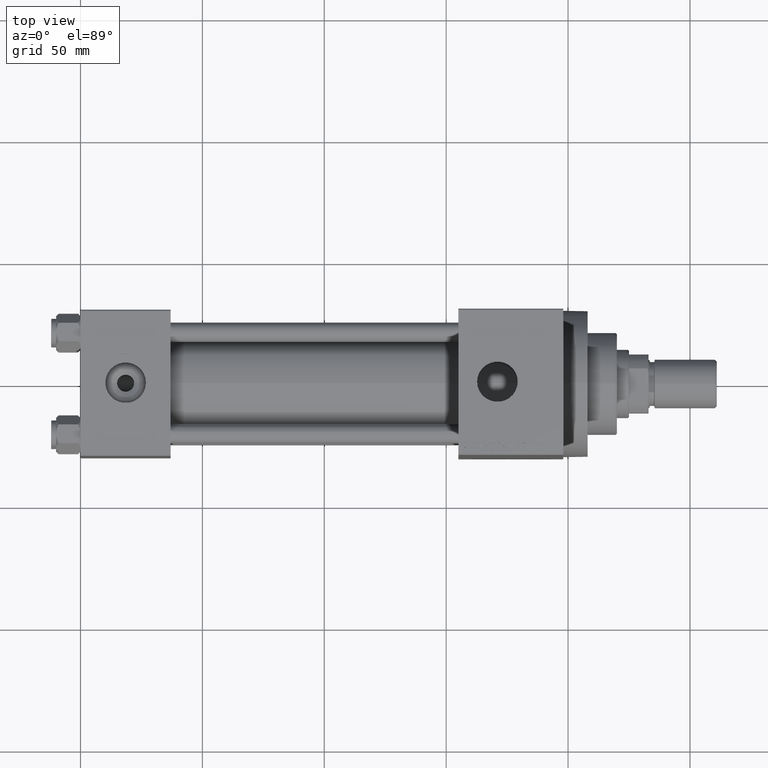
[diagram: clean part render]
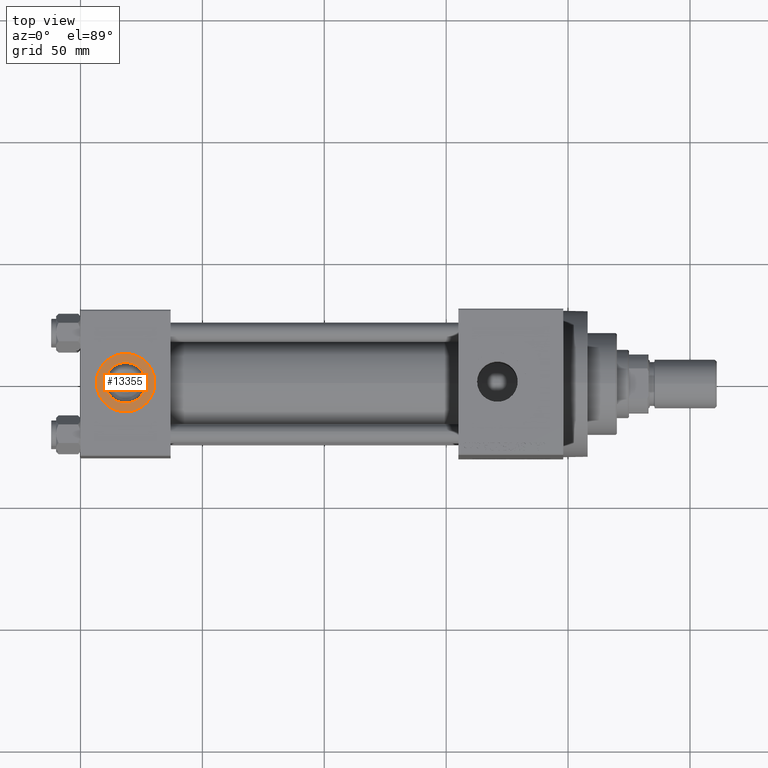
[diagram: same view with one face highlighted and labeled with its STEP entity id]
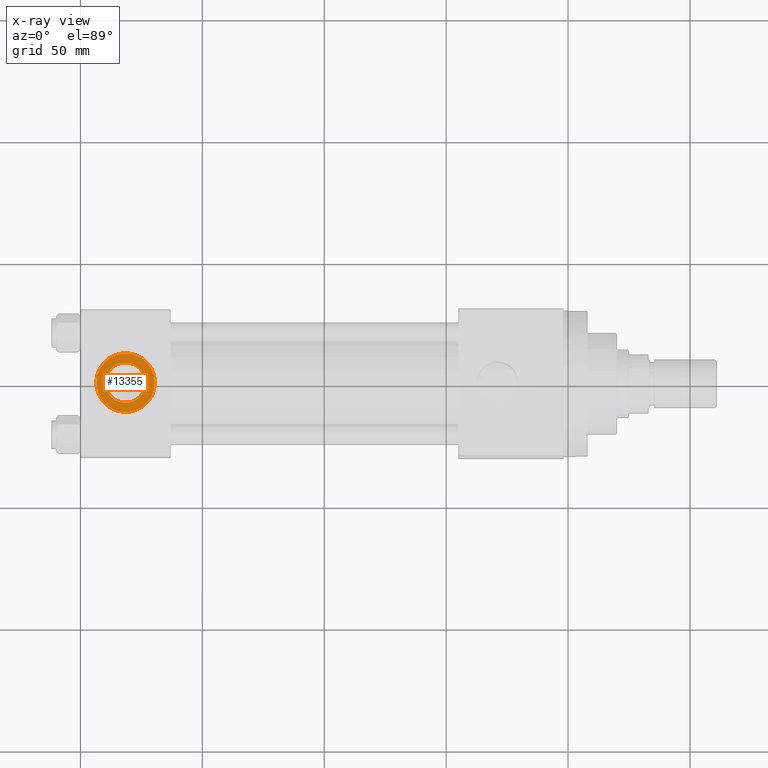
[diagram: x-ray of the same camera — body ghosted, the highlighted face saturated]
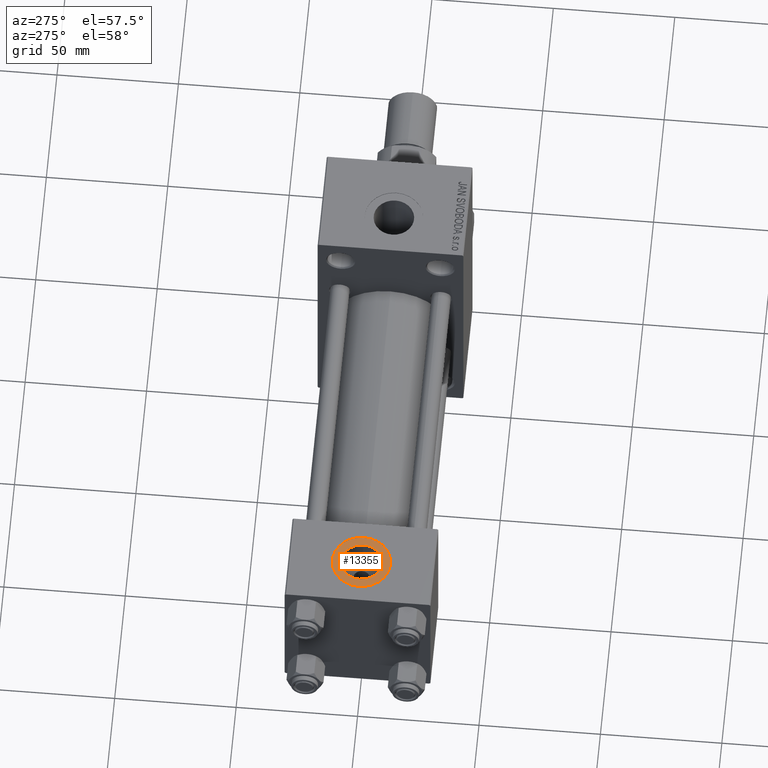
[diagram: same view with one face highlighted and labeled with its STEP entity id]
A machine part, top view. The second image highlights one B-rep face of the part: STEP entity #13355.
The next image is the same camera in x-ray: the body ghosted, the highlighted face saturated — about 0% of this face is hidden behind the body in this view.
A second angle (auxiliary view) of the same face is appended — the face is thin or edge-on in the first view.
In plain terms, the highlighted planar face has unit normal (0, 0, 1).
Its self-contained STEP definition (entity closure, byte-faithful):
#2520 = CARTESIAN_POINT ( 'NONE',  ( 18.50000000000000000, -3.469446951953614978E-15, 29.79999999999999716 ) ) ;
#3723 = CIRCLE ( 'NONE', #40700, 8.330000000000000071 ) ;
#4729 = EDGE_CURVE ( 'NONE', #14566, #7981, #9555, .T. ) ;
#4951 = CIRCLE ( 'NONE', #28813, 12.00000000000000000 ) ;
#5213 = EDGE_CURVE ( 'NONE', #24993, #25182, #4951, .T. ) ;
#5558 = DIRECTION ( 'NONE',  ( 1.000000000000000000, 0.000000000000000000, 0.000000000000000000 ) ) ;
#7981 = VERTEX_POINT ( 'NONE', #45950 ) ;
#8285 = EDGE_LOOP ( 'NONE', ( #38222, #32179 ) ) ;
#8535 = DIRECTION ( 'NONE',  ( 0.000000000000000000, 0.000000000000000000, 1.000000000000000000 ) ) ;
#9500 = CARTESIAN_POINT ( 'NONE',  ( 18.50000000000000000, -3.469446951953614978E-15, 29.79999999999999716 ) ) ;
#9555 = CIRCLE ( 'NONE', #18755, 8.330000000000000071 ) ;
#9744 = DIRECTION ( 'NONE',  ( 1.000000000000000000, 0.000000000000000000, 0.000000000000000000 ) ) ;
#9927 = CIRCLE ( 'NONE', #36875, 12.00000000000000000 ) ;
#12073 = DIRECTION ( 'NONE',  ( 1.000000000000000000, 0.000000000000000000, 0.000000000000000000 ) ) ;
#13103 = DIRECTION ( 'NONE',  ( 1.000000000000000000, 0.000000000000000000, 0.000000000000000000 ) ) ;
#13355 = ADVANCED_FACE ( 'NONE', ( #46548, #31578 ), #42701, .T. ) ;
#14566 = VERTEX_POINT ( 'NONE', #38601 ) ;
#15161 = CARTESIAN_POINT ( 'NONE',  ( 6.499999999999997335, -1.999870792976790833E-15, 29.79999999999999716 ) ) ;
#15835 = AXIS2_PLACEMENT_3D ( 'NONE', #41582, #8535, #15979 ) ;
#15979 = DIRECTION ( 'NONE',  ( 1.000000000000000000, 0.000000000000000000, -0.000000000000000000 ) ) ;
#16485 = DIRECTION ( 'NONE',  ( 0.000000000000000000, 0.000000000000000000, 1.000000000000000000 ) ) ;
#16608 = CARTESIAN_POINT ( 'NONE',  ( 18.50000000000000000, -3.469446951953614978E-15, 29.79999999999999716 ) ) ;
#16840 = DIRECTION ( 'NONE',  ( 0.000000000000000000, 0.000000000000000000, 1.000000000000000000 ) ) ;
#18755 = AXIS2_PLACEMENT_3D ( 'NONE', #9500, #43024, #13103 ) ;
#19142 = CARTESIAN_POINT ( 'NONE',  ( 30.50000000000000000, -3.469446951953614978E-15, 29.79999999999999716 ) ) ;
#24874 = EDGE_LOOP ( 'NONE', ( #35138, #38743 ) ) ;
#24993 = VERTEX_POINT ( 'NONE', #19142 ) ;
#25182 = VERTEX_POINT ( 'NONE', #15161 ) ;
#28813 = AXIS2_PLACEMENT_3D ( 'NONE', #16608, #16840, #5558 ) ;
#31578 = FACE_OUTER_BOUND ( 'NONE', #8285, .T. ) ;
#32179 = ORIENTED_EDGE ( 'NONE', *, *, #43755, .T. ) ;
#32873 = DIRECTION ( 'NONE',  ( 0.000000000000000000, 0.000000000000000000, 1.000000000000000000 ) ) ;
#35138 = ORIENTED_EDGE ( 'NONE', *, *, #4729, .F. ) ;
#36875 = AXIS2_PLACEMENT_3D ( 'NONE', #44246, #32873, #12073 ) ;
#38222 = ORIENTED_EDGE ( 'NONE', *, *, #5213, .T. ) ;
#38601 = CARTESIAN_POINT ( 'NONE',  ( 26.82999999999999829, -3.469446951953614978E-15, 29.79999999999999716 ) ) ;
#38743 = ORIENTED_EDGE ( 'NONE', *, *, #40555, .F. ) ;
#40555 = EDGE_CURVE ( 'NONE', #7981, #14566, #3723, .T. ) ;
#40700 = AXIS2_PLACEMENT_3D ( 'NONE', #2520, #16485, #9744 ) ;
#41582 = CARTESIAN_POINT ( 'NONE',  ( 18.50000000000000000, -3.469446951953614978E-15, 29.79999999999999716 ) ) ;
#42701 = PLANE ( 'NONE',  #15835 ) ;
#43024 = DIRECTION ( 'NONE',  ( 0.000000000000000000, 0.000000000000000000, 1.000000000000000000 ) ) ;
#43755 = EDGE_CURVE ( 'NONE', #25182, #24993, #9927, .T. ) ;
#44246 = CARTESIAN_POINT ( 'NONE',  ( 18.50000000000000000, -3.469446951953614978E-15, 29.79999999999999716 ) ) ;
#45950 = CARTESIAN_POINT ( 'NONE',  ( 10.16999999999999638, -2.449316168263869821E-15, 29.79999999999999716 ) ) ;
#46548 = FACE_BOUND ( 'NONE', #24874, .T. ) ;